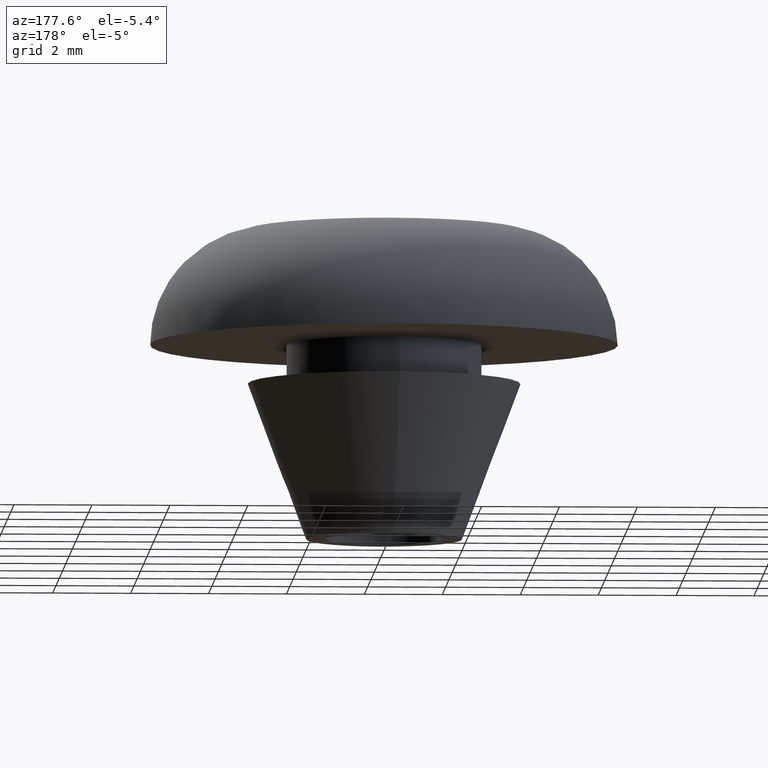
[diagram: clean part render]
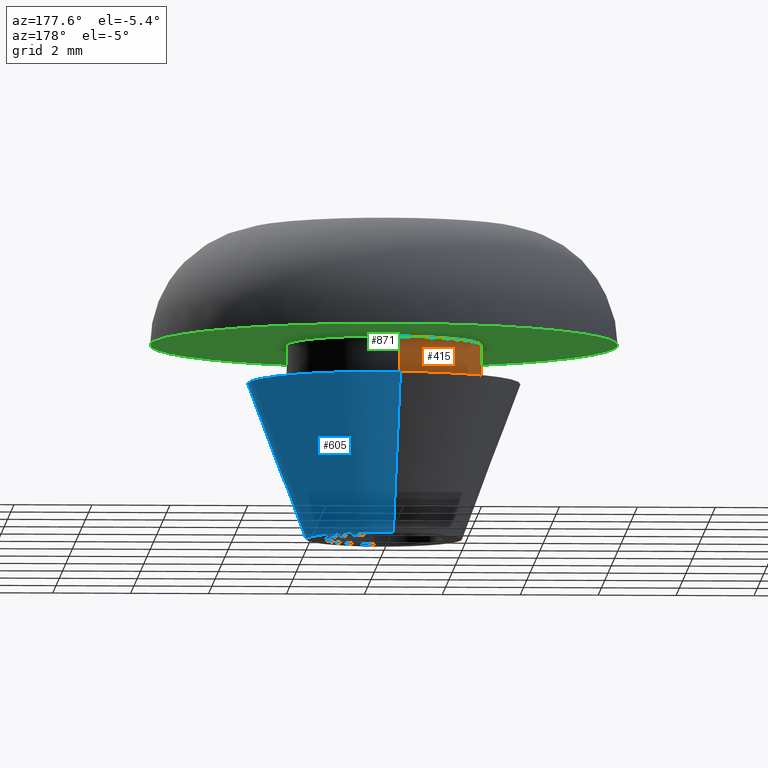
[diagram: same view with three faces highlighted in distinct colors, each labeled with its STEP entity id]
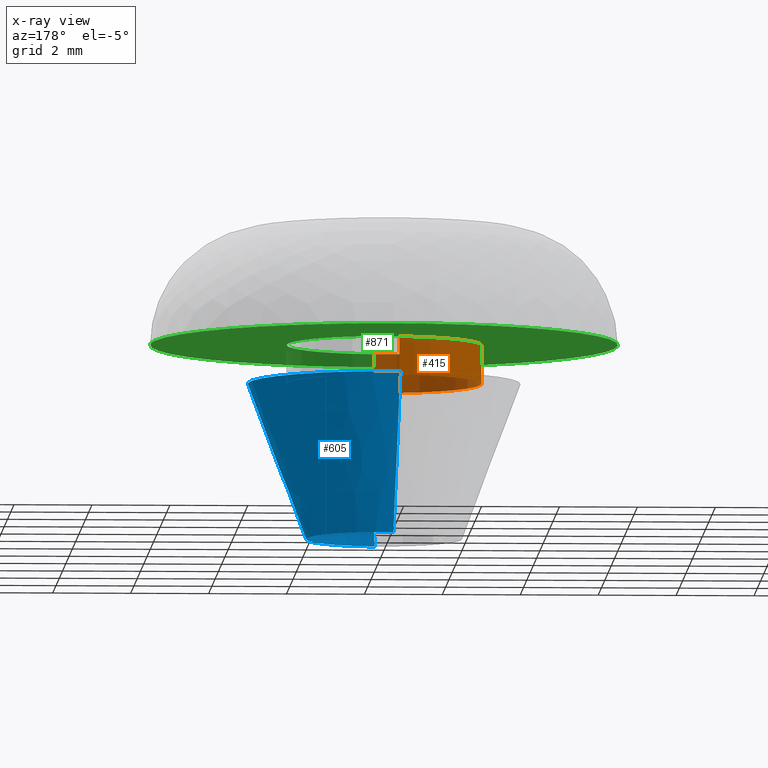
[diagram: x-ray of the same camera — body ghosted, the three highlighted faces saturated]
A machine part, auxiliary view with three faces highlighted in distinct colors.
The next image is the same camera in x-ray (body ghosted, the three faces saturated) — at least one of them is partly hidden behind the body in this view.
Their STEP definitions:

[orange] entity #415 — the highlighted face is a freeform B-spline surface patch.
#252=CARTESIAN_POINT('',(-0.295083869908955,2.482524019967695,5.000000000000027));
#253=VERTEX_POINT('',#252);
#271=CARTESIAN_POINT('',(0.152618122186380,-2.495337193400895,4.999999999999943));
#272=VERTEX_POINT('',#271);
#286=CARTESIAN_POINT('',(0.152618161030179,-2.495337191025206,4.0));
#287=VERTEX_POINT('',#286);
#288=CARTESIAN_POINT('',(0.152618122186380,-2.495337193400895,4.999999999999943));
#289=CARTESIAN_POINT('',(0.152618161030179,-2.495337191025206,4.0));
#290=QUASI_UNIFORM_CURVE('',1,(#288,#289),.UNSPECIFIED.,.F.,.U.);
#291=EDGE_CURVE('',#272,#287,#290,.T.);
#308=CARTESIAN_POINT('',(-0.295083890616084,2.482524017506368,4.0));
#309=VERTEX_POINT('',#308);
#325=CARTESIAN_POINT('',(-0.295083869908955,2.482524019967695,5.000000000000027));
#326=CARTESIAN_POINT('',(-0.295083890616084,2.482524017506368,4.0));
#327=QUASI_UNIFORM_CURVE('',1,(#325,#326),.UNSPECIFIED.,.F.,.U.);
#328=EDGE_CURVE('',#253,#309,#327,.T.);
#333=CARTESIAN_POINT('',(0.152621348837143,-2.495336996054667,5.025000000000001));
#334=CARTESIAN_POINT('',(-2.342715647217524,-2.647958344891809,5.025000000000000));
#335=CARTESIAN_POINT('',(-2.495336996054667,-0.152621348837143,5.025000000000001));
#336=CARTESIAN_POINT('',(-2.639465491831319,2.203858727098751,5.025000000000000));
#337=CARTESIAN_POINT('',(-0.295085586641896,2.482523815909166,5.025000000000002));
#338=CARTESIAN_POINT('',(0.152621348837143,-2.495336996054667,3.974375000000000));
#339=CARTESIAN_POINT('',(-2.342715647217524,-2.647958344891809,3.974375000000000));
#340=CARTESIAN_POINT('',(-2.495336996054667,-0.152621348837143,3.974375000000000));
#341=CARTESIAN_POINT('',(-2.639465491831319,2.203858727098751,3.974375000000001));
#342=CARTESIAN_POINT('',(-0.295085586641896,2.482523815909166,3.974375000000000));
#350=(BOUNDED_SURFACE()B_SPLINE_SURFACE(2,1,((#333,#338),(#334,#339),(#335,#340),(#336,#341),(#337,#342)),.UNSPECIFIED.,.F.,.F.,.U.)B_SPLINE_SURFACE_WITH_KNOTS((3,2,3),(2,2),(0.0,4.142135623730949,8.118585822512660),(0.0,1.0),.UNSPECIFIED.)GEOMETRIC_REPRESENTATION_ITEM()RATIONAL_B_SPLINE_SURFACE(((1.0,1.0),(0.707106781186548,0.707106781186548),(1.0,1.0),(0.718822509939086,0.718822509939086),(0.977505800795127,0.977505800795127)))REPRESENTATION_ITEM('')SURFACE());
#351=CARTESIAN_POINT('',(-2.500000000000000,0.0,5.0));
#352=VERTEX_POINT('',#351);
#353=CARTESIAN_POINT('',(-2.500000000000000,0.0,5.0));
#354=CARTESIAN_POINT('',(-2.500000000000001,2.220437861180431,5.000000000000002));
#355=CARTESIAN_POINT('',(-0.295083869908955,2.482524019967694,5.000000000000027));
#363=(BOUNDED_CURVE()B_SPLINE_CURVE(2,(#353,#354,#355),.UNSPECIFIED.,.F.,.U.)B_SPLINE_CURVE_WITH_KNOTS((3,3),(0.0,0.229562590386006),.UNSPECIFIED.)CURVE()GEOMETRIC_REPRESENTATION_ITEM()RATIONAL_B_SPLINE_CURVE((1.0,0.731050695930754,0.956026983258707))REPRESENTATION_ITEM(''));
#364=EDGE_CURVE('',#352,#253,#363,.T.);
#365=ORIENTED_EDGE('',*,*,#364,.T.);
#366=ORIENTED_EDGE('',*,*,#328,.T.);
#367=CARTESIAN_POINT('',(-2.500000000000000,0.0,4.0));
#368=VERTEX_POINT('',#367);
#369=CARTESIAN_POINT('',(-2.500000000000000,0.0,4.0));
#370=CARTESIAN_POINT('',(-2.500000000000000,2.220437842529027,4.0));
#371=CARTESIAN_POINT('',(-0.295083890616084,2.482524017506368,4.000000000000000));
#379=(BOUNDED_CURVE()B_SPLINE_CURVE(2,(#369,#370,#371),.UNSPECIFIED.,.F.,.U.)B_SPLINE_CURVE_WITH_KNOTS((3,3),(0.0,0.229562588976323),.UNSPECIFIED.)CURVE()GEOMETRIC_REPRESENTATION_ITEM()RATIONAL_B_SPLINE_CURVE((1.0,0.731050697582300,0.956026980495667))REPRESENTATION_ITEM(''));
#380=EDGE_CURVE('',#368,#309,#379,.T.);
#381=ORIENTED_EDGE('',*,*,#380,.F.);
#382=CARTESIAN_POINT('',(0.152618161030179,-2.495337191025206,4.0));
#383=CARTESIAN_POINT('',(0.076380309873996,-2.500000000000000,4.000000000000000));
#384=CARTESIAN_POINT('',(0.0,-2.500000000000000,4.0));
#385=CARTESIAN_POINT('',(-2.500000000000000,-2.500000000000000,4.000000000000000));
#386=CARTESIAN_POINT('',(-2.500000000000000,0.0,4.0));
#394=(BOUNDED_CURVE()B_SPLINE_CURVE(2,(#382,#383,#384,#385,#386),.UNSPECIFIED.,.F.,.U.)B_SPLINE_CURVE_WITH_KNOTS((3,2,3),(0.739333182671493,0.750000000000000,1.0),.UNSPECIFIED.)CURVE()GEOMETRIC_REPRESENTATION_ITEM()RATIONAL_B_SPLINE_CURVE((0.976072514096089,0.987503046152634,1.0,0.707106781186548,1.0))REPRESENTATION_ITEM(''));
#395=EDGE_CURVE('',#287,#368,#394,.T.);
#396=ORIENTED_EDGE('',*,*,#395,.F.);
#397=ORIENTED_EDGE('',*,*,#291,.F.);
#398=CARTESIAN_POINT('',(0.152618122186380,-2.495337193400895,4.999999999999943));
#399=CARTESIAN_POINT('',(0.076380290397643,-2.500000000000000,5.000000000000001));
#400=CARTESIAN_POINT('',(0.0,-2.500000000000000,5.0));
#401=CARTESIAN_POINT('',(-2.500000000000000,-2.500000000000000,5.000000000000001));
#402=CARTESIAN_POINT('',(-2.500000000000000,0.0,5.0));
#410=(BOUNDED_CURVE()B_SPLINE_CURVE(2,(#398,#399,#400,#401,#402),.UNSPECIFIED.,.F.,.U.)B_SPLINE_CURVE_WITH_KNOTS((3,2,3),(0.739333185357453,0.750000000000000,1.0),.UNSPECIFIED.)CURVE()GEOMETRIC_REPRESENTATION_ITEM()RATIONAL_B_SPLINE_CURVE((0.976072519852624,0.987503049299432,1.0,0.707106781186548,1.0))REPRESENTATION_ITEM(''));
#411=EDGE_CURVE('',#272,#352,#410,.T.);
#412=ORIENTED_EDGE('',*,*,#411,.T.);
#413=EDGE_LOOP('',(#365,#366,#381,#396,#397,#412));
#414=FACE_OUTER_BOUND('',#413,.T.);
#415=ADVANCED_FACE('',(#414),#350,.T.);

[blue] entity #605 — the highlighted face is a freeform B-spline surface patch.
#440=CARTESIAN_POINT('',(-0.156914889525361,1.993833847277193,-0.000002871258541));
#441=VERTEX_POINT('',#440);
#455=CARTESIAN_POINT('',(0.156914889525361,-1.993833847277193,-0.000002871258541));
#456=VERTEX_POINT('',#455);
#472=CARTESIAN_POINT('',(0.274605915676212,-3.489210439869961,3.999999200999094));
#473=VERTEX_POINT('',#472);
#474=CARTESIAN_POINT('',(0.156914889525361,-1.993833847277193,-0.000002871258541));
#475=CARTESIAN_POINT('',(0.274605915676212,-3.489210439869961,3.999999200999094));
#476=QUASI_UNIFORM_CURVE('',1,(#474,#475),.UNSPECIFIED.,.F.,.U.);
#477=EDGE_CURVE('',#456,#473,#476,.T.);
#496=CARTESIAN_POINT('',(-0.274605915676212,3.489210439869961,3.999999200999094));
#497=VERTEX_POINT('',#496);
#511=CARTESIAN_POINT('',(-0.156914889525361,1.993833847277193,-0.000002871258541));
#512=CARTESIAN_POINT('',(-0.274605915676212,3.489210439869961,3.999999200999094));
#513=QUASI_UNIFORM_CURVE('',1,(#511,#512),.UNSPECIFIED.,.F.,.U.);
#514=EDGE_CURVE('',#441,#497,#513,.T.);
#519=CARTESIAN_POINT('',(0.126465591123121,-1.958615381646571,-0.100000000000000));
#520=CARTESIAN_POINT('',(0.140180608287228,-1.957535986386626,-0.100000000000000));
#521=CARTESIAN_POINT('',(2.110426242817160,-1.802474292085366,-0.100000000000000));
#522=CARTESIAN_POINT('',(1.956450267451263,0.153975975365897,-0.100000000000000));
#523=CARTESIAN_POINT('',(1.802474292085366,2.110426242817160,-0.100000000000000));
#524=CARTESIAN_POINT('',(-0.167769523391995,1.955364691678441,-0.100000000000000));
#525=CARTESIAN_POINT('',(-0.181482742661114,1.954285437915902,-0.100000000000000));
#526=CARTESIAN_POINT('',(0.228020682848264,-3.531433434137599,4.102500000000002));
#527=CARTESIAN_POINT('',(0.252749208222337,-3.529487256983401,4.102499999999999));
#528=CARTESIAN_POINT('',(3.805152284620812,-3.249907071541816,4.102499999999999));
#529=CARTESIAN_POINT('',(3.527529678081313,0.277622606539498,4.102500000000000));
#530=CARTESIAN_POINT('',(3.249907071541816,3.805152284620812,4.102499999999999));
#531=CARTESIAN_POINT('',(-0.302492725058528,3.525572357304933,4.102499999999998));
#532=CARTESIAN_POINT('',(-0.327218008782132,3.523626435274165,4.102500000000000));
#540=(BOUNDED_SURFACE()B_SPLINE_SURFACE(2,1,((#519,#526),(#520,#527),(#521,#528),(#522,#529),(#523,#530),(#524,#531),(#525,#532)),.UNSPECIFIED.,.F.,.F.,.U.)B_SPLINE_SURFACE_WITH_KNOTS((3,1,2,1,3),(2,2),(0.0,0.058633468558252,5.921308676996444,11.783983885434630,11.842609599958671),(0.0,4.488326671811775),.UNSPECIFIED.)GEOMETRIC_REPRESENTATION_ITEM()RATIONAL_B_SPLINE_SURFACE(((1.005858535472511,1.005858535472511),(1.002929267736256,1.002929267736256),(0.707106781186548,0.707106781186548),(1.0,1.0),(0.707106781186548,0.707106781186548),(1.002928880352688,1.002928880352688),(1.005857760705375,1.005857760705375)))REPRESENTATION_ITEM('')SURFACE());
#541=CARTESIAN_POINT('',(2.0,0.0,0.0));
#542=VERTEX_POINT('',#541);
#543=CARTESIAN_POINT('',(-0.156914889525361,1.993833847277194,-0.000002871258541));
#544=CARTESIAN_POINT('',(-0.078578514880234,1.999998946086843,-0.000002819118334));
#545=CARTESIAN_POINT('',(0.000000081283530,1.999998967173517,-0.000002762713466));
#546=CARTESIAN_POINT('',(2.000000039044978,1.999999503876272,-0.000001327084196));
#547=CARTESIAN_POINT('',(2.0,0.0,0.0));
#555=(BOUNDED_CURVE()B_SPLINE_CURVE(2,(#543,#544,#545,#546,#547),.UNSPECIFIED.,.F.,.U.)B_SPLINE_CURVE_WITH_KNOTS((3,2,3),(0.236331577260723,0.250000000000000,0.500000000000000),.UNSPECIFIED.)CURVE()GEOMETRIC_REPRESENTATION_ITEM()RATIONAL_B_SPLINE_CURVE((0.969723933473973,0.983986446671160,1.0,0.707106781186548,1.0))REPRESENTATION_ITEM(''));
#556=EDGE_CURVE('',#441,#542,#555,.T.);
#557=ORIENTED_EDGE('',*,*,#556,.F.);
#558=ORIENTED_EDGE('',*,*,#514,.T.);
#559=CARTESIAN_POINT('',(3.500000000000000,0.0,4.0));
#560=VERTEX_POINT('',#559);
#561=CARTESIAN_POINT('',(-0.274605915676212,3.489210439869960,3.999999200999094));
#562=CARTESIAN_POINT('',(-0.137514924516652,3.500000000000000,4.000000000000001));
#563=CARTESIAN_POINT('',(0.0,3.500000000000000,4.0));
#564=CARTESIAN_POINT('',(3.500000000000000,3.500000000000000,4.0));
#565=CARTESIAN_POINT('',(3.500000000000000,0.0,4.0));
#573=(BOUNDED_CURVE()B_SPLINE_CURVE(2,(#561,#562,#563,#564,#565),.UNSPECIFIED.,.F.,.U.)B_SPLINE_CURVE_WITH_KNOTS((3,2,3),(0.236331344646406,0.250000000000000,0.500000000000000),.UNSPECIFIED.)CURVE()GEOMETRIC_REPRESENTATION_ITEM()RATIONAL_B_SPLINE_CURVE((0.969723448024941,0.983986174146537,1.0,0.707106781186547,1.0))REPRESENTATION_ITEM(''));
#574=EDGE_CURVE('',#497,#560,#573,.T.);
#575=ORIENTED_EDGE('',*,*,#574,.T.);
#576=CARTESIAN_POINT('',(3.500000000000000,0.0,4.0));
#577=CARTESIAN_POINT('',(3.500000000000000,-3.235367554060421,4.000000000000000));
#578=CARTESIAN_POINT('',(0.274605915676211,-3.489210439869960,3.999999200999094));
#586=(BOUNDED_CURVE()B_SPLINE_CURVE(2,(#576,#577,#578),.UNSPECIFIED.,.F.,.U.)B_SPLINE_CURVE_WITH_KNOTS((3,3),(0.500000000000000,0.736331344646406),.UNSPECIFIED.)CURVE()GEOMETRIC_REPRESENTATION_ITEM()RATIONAL_B_SPLINE_CURVE((1.0,0.723120607040011,0.969723448024941))REPRESENTATION_ITEM(''));
#587=EDGE_CURVE('',#560,#473,#586,.T.);
#588=ORIENTED_EDGE('',*,*,#587,.T.);
#589=ORIENTED_EDGE('',*,*,#477,.F.);
#590=CARTESIAN_POINT('',(2.0,0.0,0.0));
#591=CARTESIAN_POINT('',(1.999999957761449,-1.848783439220838,-0.000001435629271));
#592=CARTESIAN_POINT('',(0.156914889525361,-1.993833847277194,-0.000002871258541));
#600=(BOUNDED_CURVE()B_SPLINE_CURVE(2,(#590,#591,#592),.UNSPECIFIED.,.F.,.U.)B_SPLINE_CURVE_WITH_KNOTS((3,3),(0.500000000000000,0.736331577260723),.UNSPECIFIED.)CURVE()GEOMETRIC_REPRESENTATION_ITEM()RATIONAL_B_SPLINE_CURVE((1.0,0.723120334515387,0.969723933473973))REPRESENTATION_ITEM(''));
#601=EDGE_CURVE('',#542,#456,#600,.T.);
#602=ORIENTED_EDGE('',*,*,#601,.F.);
#603=EDGE_LOOP('',(#557,#558,#575,#588,#589,#602));
#604=FACE_OUTER_BOUND('',#603,.T.);
#605=ADVANCED_FACE('',(#604),#540,.T.);

[green] entity #871 — the highlighted face is a freeform B-spline surface patch.
#252=CARTESIAN_POINT('',(-0.295083869908955,2.482524019967695,5.000000000000027));
#253=VERTEX_POINT('',#252);
#254=CARTESIAN_POINT('',(2.500000000000000,0.0,5.0));
#255=VERTEX_POINT('',#254);
#256=CARTESIAN_POINT('',(-0.295083869908955,2.482524019967694,5.000000000000027));
#257=CARTESIAN_POINT('',(-0.148059431688853,2.499999999999999,5.000000000000001));
#258=CARTESIAN_POINT('',(0.0,2.500000000000000,5.0));
#259=CARTESIAN_POINT('',(2.500000000000000,2.500000000000000,5.000000000000001));
#260=CARTESIAN_POINT('',(2.500000000000000,0.0,5.0));
#268=(BOUNDED_CURVE()B_SPLINE_CURVE(2,(#256,#257,#258,#259,#260),.UNSPECIFIED.,.F.,.U.)B_SPLINE_CURVE_WITH_KNOTS((3,2,3),(0.229562590386006,0.250000000000000,0.500000000000000),.UNSPECIFIED.)CURVE()GEOMETRIC_REPRESENTATION_ITEM()RATIONAL_B_SPLINE_CURVE((0.956026983258707,0.976056085255794,1.0,0.707106781186548,1.0))REPRESENTATION_ITEM(''));
#269=EDGE_CURVE('',#253,#255,#268,.T.);
#271=CARTESIAN_POINT('',(0.152618122186380,-2.495337193400895,4.999999999999943));
#272=VERTEX_POINT('',#271);
#273=CARTESIAN_POINT('',(2.500000000000000,0.0,5.0));
#274=CARTESIAN_POINT('',(2.500000000000000,-2.351768213950561,4.999999999999999));
#275=CARTESIAN_POINT('',(0.152618122186380,-2.495337193400895,4.999999999999943));
#283=(BOUNDED_CURVE()B_SPLINE_CURVE(2,(#273,#274,#275),.UNSPECIFIED.,.F.,.U.)B_SPLINE_CURVE_WITH_KNOTS((3,3),(0.500000000000000,0.739333185357453),.UNSPECIFIED.)CURVE()GEOMETRIC_REPRESENTATION_ITEM()RATIONAL_B_SPLINE_CURVE((1.0,0.719603731887116,0.976072519852624))REPRESENTATION_ITEM(''));
#284=EDGE_CURVE('',#255,#272,#283,.T.);
#351=CARTESIAN_POINT('',(-2.500000000000000,0.0,5.0));
#352=VERTEX_POINT('',#351);
#353=CARTESIAN_POINT('',(-2.500000000000000,0.0,5.0));
#354=CARTESIAN_POINT('',(-2.500000000000001,2.220437861180431,5.000000000000002));
#355=CARTESIAN_POINT('',(-0.295083869908955,2.482524019967694,5.000000000000027));
#363=(BOUNDED_CURVE()B_SPLINE_CURVE(2,(#353,#354,#355),.UNSPECIFIED.,.F.,.U.)B_SPLINE_CURVE_WITH_KNOTS((3,3),(0.0,0.229562590386006),.UNSPECIFIED.)CURVE()GEOMETRIC_REPRESENTATION_ITEM()RATIONAL_B_SPLINE_CURVE((1.0,0.731050695930754,0.956026983258707))REPRESENTATION_ITEM(''));
#364=EDGE_CURVE('',#352,#253,#363,.T.);
#398=CARTESIAN_POINT('',(0.152618122186380,-2.495337193400895,4.999999999999943));
#399=CARTESIAN_POINT('',(0.076380290397643,-2.500000000000000,5.000000000000001));
#400=CARTESIAN_POINT('',(0.0,-2.500000000000000,5.0));
#401=CARTESIAN_POINT('',(-2.500000000000000,-2.500000000000000,5.000000000000001));
#402=CARTESIAN_POINT('',(-2.500000000000000,0.0,5.0));
#410=(BOUNDED_CURVE()B_SPLINE_CURVE(2,(#398,#399,#400,#401,#402),.UNSPECIFIED.,.F.,.U.)B_SPLINE_CURVE_WITH_KNOTS((3,2,3),(0.739333185357453,0.750000000000000,1.0),.UNSPECIFIED.)CURVE()GEOMETRIC_REPRESENTATION_ITEM()RATIONAL_B_SPLINE_CURVE((0.976072519852624,0.987503049299432,1.0,0.707106781186548,1.0))REPRESENTATION_ITEM(''));
#411=EDGE_CURVE('',#272,#352,#410,.T.);
#658=CARTESIAN_POINT('',(-6.0,0.0,5.0));
#659=VERTEX_POINT('',#658);
#673=CARTESIAN_POINT('',(0.692785140352022,-5.959869860098236,5.0));
#674=VERTEX_POINT('',#673);
#675=CARTESIAN_POINT('',(0.692785140352022,-5.959869860098236,5.0));
#676=CARTESIAN_POINT('',(0.347554736594494,-6.000000000000001,5.0));
#677=CARTESIAN_POINT('',(0.0,-6.0,5.0));
#678=CARTESIAN_POINT('',(-6.0,-6.0,5.000000000000001));
#679=CARTESIAN_POINT('',(-6.0,0.0,5.0));
#687=(BOUNDED_CURVE()B_SPLINE_CURVE(2,(#675,#676,#677,#678,#679),.UNSPECIFIED.,.F.,.U.)B_SPLINE_CURVE_WITH_KNOTS((3,2,3),(0.730000013374359,0.750000000000000,1.0),.UNSPECIFIED.)CURVE()GEOMETRIC_REPRESENTATION_ITEM()RATIONAL_B_SPLINE_CURVE((0.956886144514643,0.976568558163960,1.0,0.707106781186548,1.0))REPRESENTATION_ITEM(''));
#688=EDGE_CURVE('',#674,#659,#687,.T.);
#765=CARTESIAN_POINT('',(6.0,0.0,5.0));
#766=VERTEX_POINT('',#765);
#767=CARTESIAN_POINT('',(6.0,0.0,5.0));
#768=CARTESIAN_POINT('',(6.000000000000001,-5.342950630249837,4.999999999999999));
#769=CARTESIAN_POINT('',(0.692785140352022,-5.959869860098236,5.0));
#777=(BOUNDED_CURVE()B_SPLINE_CURVE(2,(#767,#768,#769),.UNSPECIFIED.,.F.,.U.)B_SPLINE_CURVE_WITH_KNOTS((3,3),(0.500000000000000,0.730000013374358),.UNSPECIFIED.)CURVE()GEOMETRIC_REPRESENTATION_ITEM()RATIONAL_B_SPLINE_CURVE((1.0,0.730538223022588,0.956886144514641))REPRESENTATION_ITEM(''));
#778=EDGE_CURVE('',#766,#674,#777,.T.);
#780=CARTESIAN_POINT('',(-6.0,0.0,5.0));
#781=CARTESIAN_POINT('',(-6.0,6.0,5.000000000000001));
#782=CARTESIAN_POINT('',(0.0,6.0,5.0));
#783=CARTESIAN_POINT('',(6.0,6.0,5.000000000000001));
#784=CARTESIAN_POINT('',(6.0,0.0,5.0));
#792=(BOUNDED_CURVE()B_SPLINE_CURVE(2,(#780,#781,#782,#783,#784),.UNSPECIFIED.,.F.,.U.)B_SPLINE_CURVE_WITH_KNOTS((3,2,3),(0.0,0.250000000000000,0.500000000000000),.UNSPECIFIED.)CURVE()GEOMETRIC_REPRESENTATION_ITEM()RATIONAL_B_SPLINE_CURVE((1.0,0.707106781186548,1.0,0.707106781186548,1.0))REPRESENTATION_ITEM(''));
#793=EDGE_CURVE('',#659,#766,#792,.T.);
#855=CARTESIAN_POINT('',(6.599399976741671,-6.599365977184950,5.0));
#856=CARTESIAN_POINT('',(-6.599400298606753,-6.599365977184950,5.0));
#857=CARTESIAN_POINT('',(6.599399976741671,6.599398681048396,5.0));
#858=CARTESIAN_POINT('',(-6.599400298606753,6.599398681048396,5.0));
#859=B_SPLINE_SURFACE_WITH_KNOTS('',1,1,((#855,#857),(#856,#858)),.UNSPECIFIED.,.F.,.F.,.U.,(2,2),(2,2),(0.0,13.198800275348420),(0.0,13.198764658233349),.UNSPECIFIED.);
#860=ORIENTED_EDGE('',*,*,#793,.T.);
#861=ORIENTED_EDGE('',*,*,#778,.T.);
#862=ORIENTED_EDGE('',*,*,#688,.T.);
#863=EDGE_LOOP('',(#860,#861,#862));
#864=FACE_OUTER_BOUND('',#863,.T.);
#865=ORIENTED_EDGE('',*,*,#284,.F.);
#866=ORIENTED_EDGE('',*,*,#269,.F.);
#867=ORIENTED_EDGE('',*,*,#364,.F.);
#868=ORIENTED_EDGE('',*,*,#411,.F.);
#869=EDGE_LOOP('',(#865,#866,#867,#868));
#870=FACE_BOUND('',#869,.T.);
#871=ADVANCED_FACE('',(#864,#870),#859,.T.);